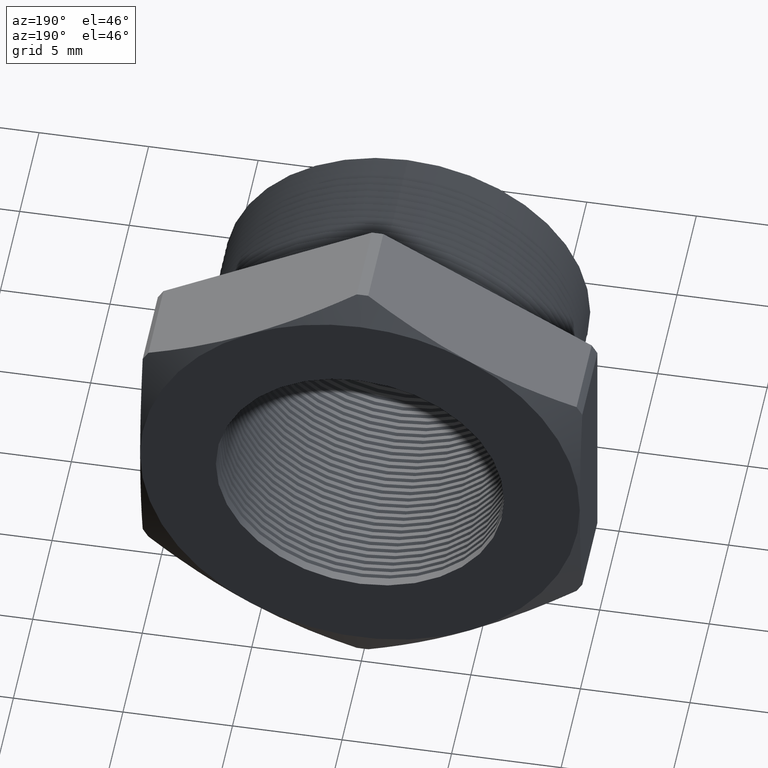
[diagram: clean part render]
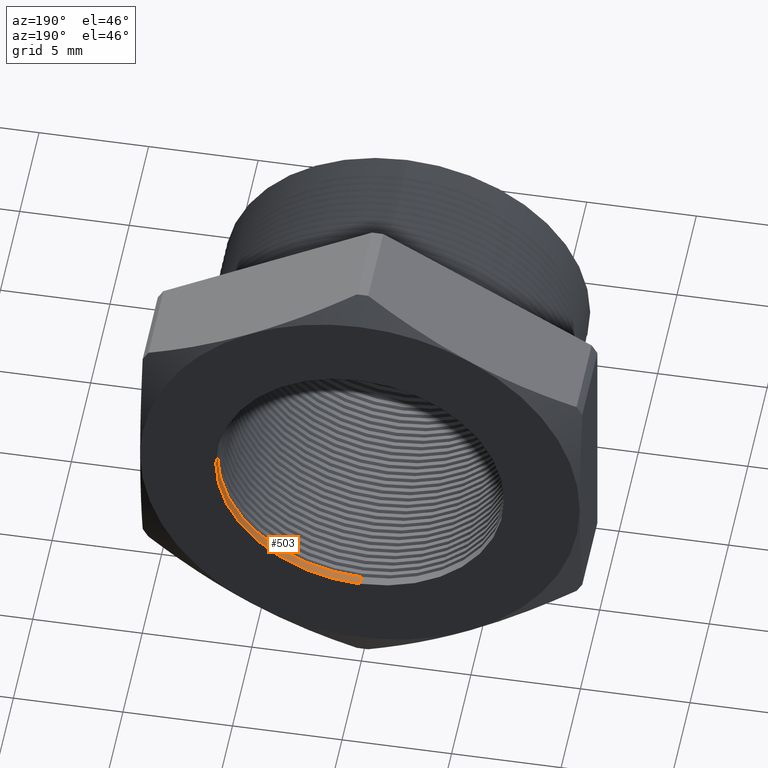
[diagram: same view with one face highlighted and labeled with its STEP entity id]
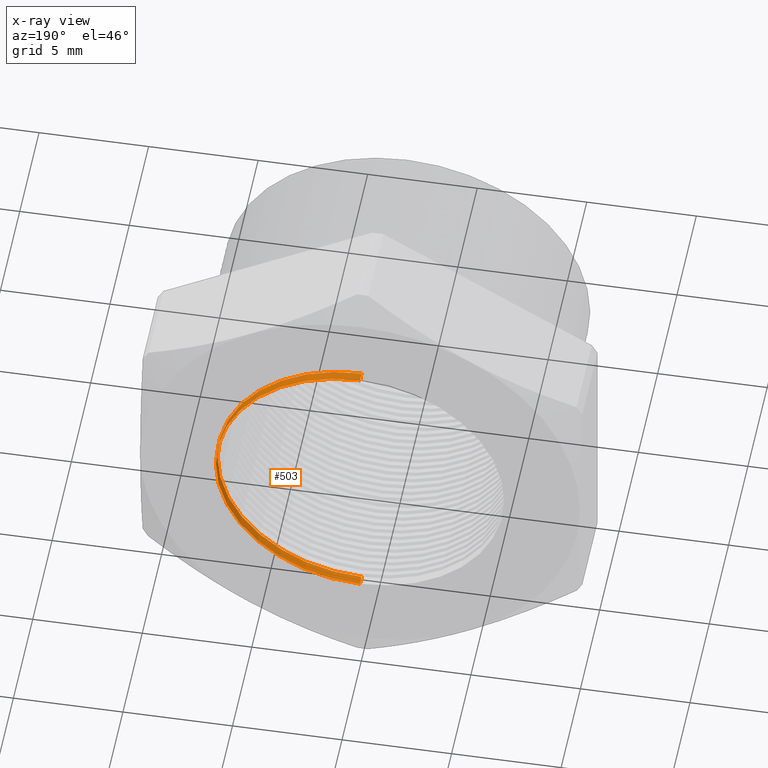
[diagram: x-ray of the same camera — body ghosted, the highlighted face saturated]
A machine part, auxiliary view. The second image highlights one B-rep face of the part: STEP entity #503.
The next image is the same camera in x-ray: the body ghosted, the highlighted face saturated — about 0% of this face is hidden behind the body in this view.
In plain terms, the highlighted cylindrical surface (partial cylindrical patch) has radius 6.5783 mm, axis along (-0, -1, -0).
Its self-contained STEP definition (entity closure, byte-faithful):
#487 = ORIENTED_EDGE ( 'NONE', *, *, #490, .F. ) ;
#490 = EDGE_CURVE ( 'NONE', #1437, #1436, #3764, .T. ) ;
#496 = ORIENTED_EDGE ( 'NONE', *, *, #1813, .F. ) ;
#498 = ORIENTED_EDGE ( 'NONE', *, *, #1495, .F. ) ;
#500 = ORIENTED_EDGE ( 'NONE', *, *, #1498, .T. ) ;
#501 = EDGE_LOOP ( 'NONE', ( #498, #496, #500, #487 ) ) ;
#503 = ADVANCED_FACE ( 'NONE', ( #3750 ), #3807, .F. ) ;
#1436 = VERTEX_POINT ( 'NONE', #5325 ) ;
#1437 = VERTEX_POINT ( 'NONE', #5324 ) ;
#1492 = VERTEX_POINT ( 'NONE', #5414 ) ;
#1493 = VERTEX_POINT ( 'NONE', #5413 ) ;
#1495 = EDGE_CURVE ( 'NONE', #1492, #1437, #5412, .T. ) ;
#1498 = EDGE_CURVE ( 'NONE', #1493, #1436, #5408, .T. ) ;
#1813 = EDGE_CURVE ( 'NONE', #1493, #1492, #6019, .T. ) ;
#3750 = FACE_OUTER_BOUND ( 'NONE', #501, .T. ) ;
#3760 = DIRECTION ( 'NONE',  ( 0.0000000000000000000, 0.0000000000000000000, -1.000000000000000000 ) ) ;
#3761 = DIRECTION ( 'NONE',  ( -0.0000000000000000000, 1.000000000000000000, -0.0000000000000000000 ) ) ;
#3762 = CARTESIAN_POINT ( 'NONE',  ( 0.0000000000000000000, 0.3903219653570460000, 0.0000000000000000000 ) ) ;
#3763 = AXIS2_PLACEMENT_3D ( 'NONE', #3762, #3761, #3760 ) ;
#3764 = CIRCLE ( 'NONE', #3763, 0.2589880461203001900 ) ;
#3803 = DIRECTION ( 'NONE',  ( 0.0000000000000000000, 0.0000000000000000000, -1.000000000000000000 ) ) ;
#3804 = DIRECTION ( 'NONE',  ( -0.0000000000000000000, -1.000000000000000000, -0.0000000000000000000 ) ) ;
#3805 = CARTESIAN_POINT ( 'NONE',  ( 0.0000000000000000000, 0.0000000000000000000, 0.0000000000000000000 ) ) ;
#3806 = AXIS2_PLACEMENT_3D ( 'NONE', #3805, #3804, #3803 ) ;
#3807 = CYLINDRICAL_SURFACE ( 'NONE', #3806, 0.2589880461203001900 ) ;
#5324 = CARTESIAN_POINT ( 'NONE',  ( 3.171688816986526800E-017, 0.3903219653570460000, 0.2589880461203001900 ) ) ;
#5325 = CARTESIAN_POINT ( 'NONE',  ( 0.0000000000000000000, 0.3903219653570460000, -0.2589880461203001900 ) ) ;
#5405 = DIRECTION ( 'NONE',  ( -0.0000000000000000000, -1.000000000000000000, -0.0000000000000000000 ) ) ;
#5406 = VECTOR ( 'NONE', #5405, 39.37007874015748100 ) ;
#5407 = CARTESIAN_POINT ( 'NONE',  ( 0.0000000000000000000, 0.0000000000000000000, -0.2589880461203001900 ) ) ;
#5408 = LINE ( 'NONE', #5407, #5406 ) ;
#5409 = DIRECTION ( 'NONE',  ( -0.0000000000000000000, -1.000000000000000000, -0.0000000000000000000 ) ) ;
#5410 = VECTOR ( 'NONE', #5409, 39.37007874015748100 ) ;
#5411 = CARTESIAN_POINT ( 'NONE',  ( 3.171688816986526800E-017, 0.0000000000000000000, 0.2589880461203001900 ) ) ;
#5412 = LINE ( 'NONE', #5411, #5410 ) ;
#5413 = CARTESIAN_POINT ( 'NONE',  ( 0.0000000000000000000, 0.4075548905829479200, -0.2589880461203001900 ) ) ;
#5414 = CARTESIAN_POINT ( 'NONE',  ( 3.171688816986526800E-017, 0.4075548905829479200, 0.2589880461203001900 ) ) ;
#6016 = DIRECTION ( 'NONE',  ( 0.0000000000000000000, 0.0000000000000000000, -1.000000000000000000 ) ) ;
#6017 = DIRECTION ( 'NONE',  ( -0.0000000000000000000, -1.000000000000000000, -0.0000000000000000000 ) ) ;
#6018 = AXIS2_PLACEMENT_3D ( 'NONE', #6024, #6017, #6016 ) ;
#6019 = CIRCLE ( 'NONE', #6018, 0.2589880461203001900 ) ;
#6024 = CARTESIAN_POINT ( 'NONE',  ( 0.0000000000000000000, 0.4075548905829479200, 0.0000000000000000000 ) ) ;